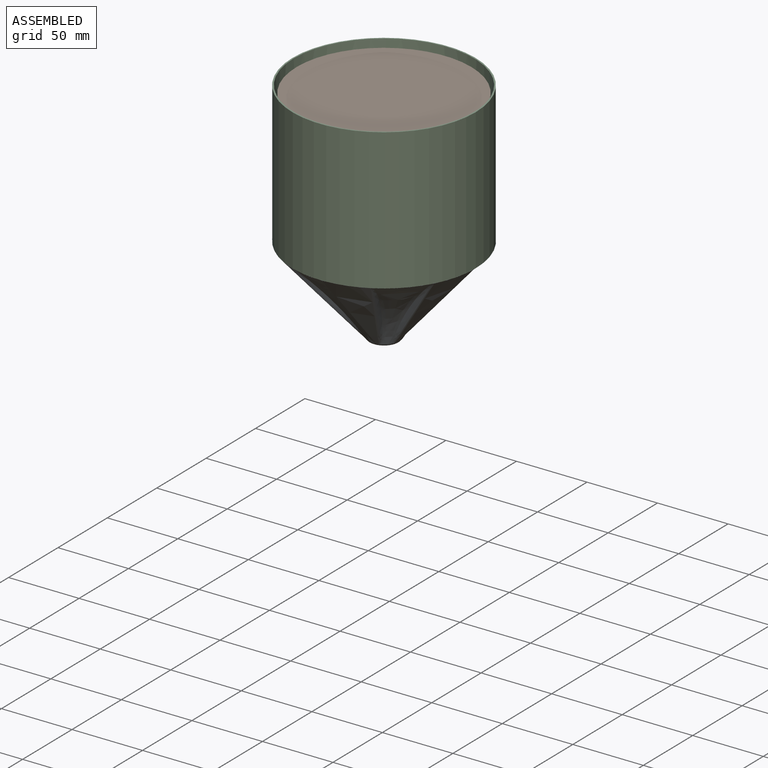
[diagram: assembled view]
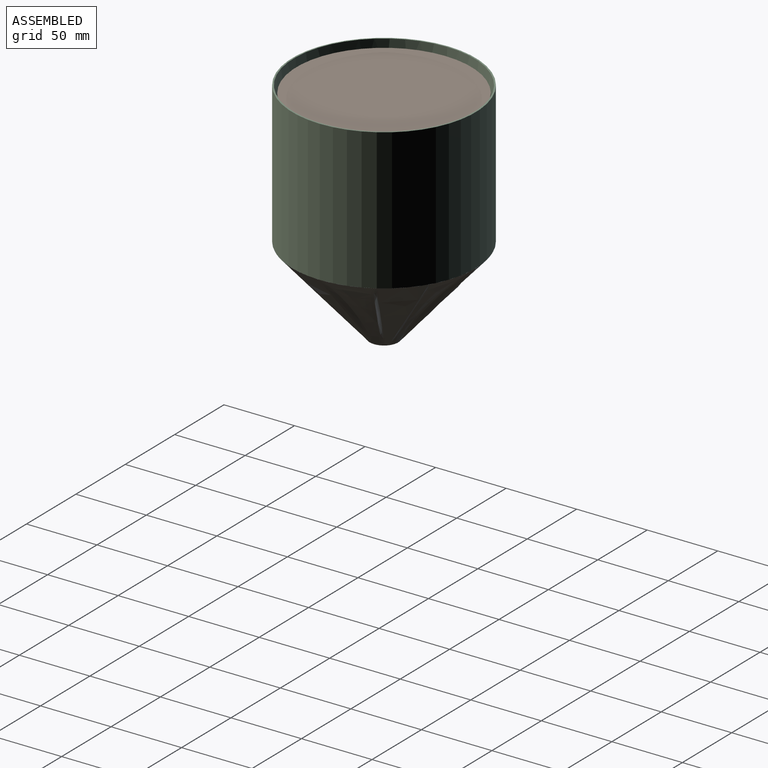
[diagram: assembled view, second angle]
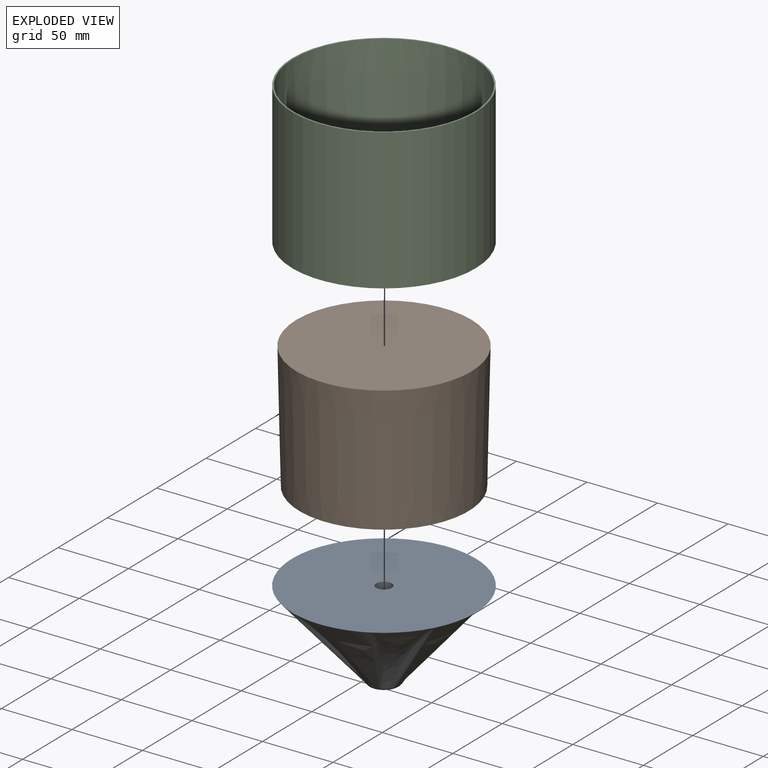
[diagram: exploded view]
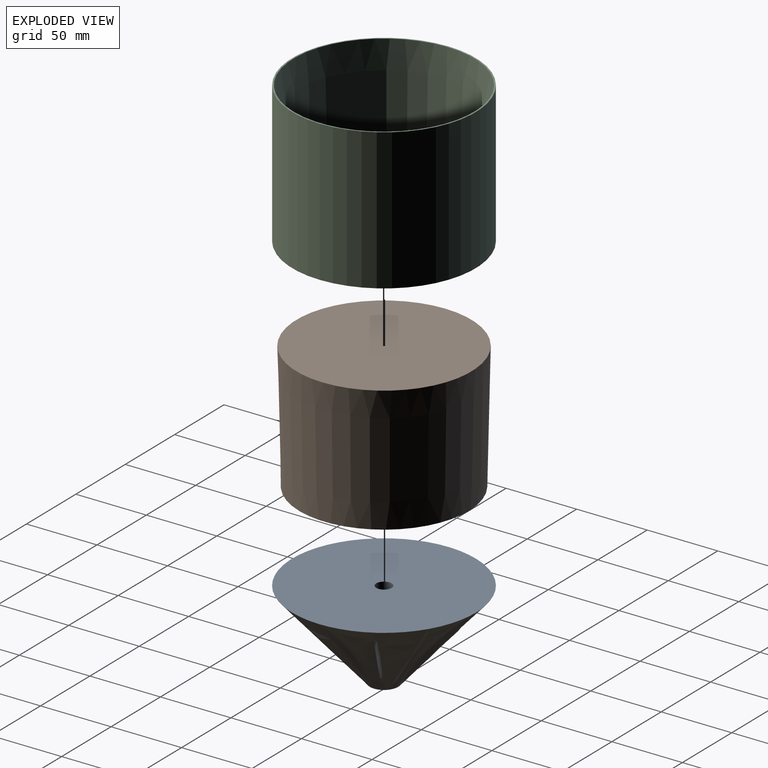
[diagram: exploded view, second angle]
ASSEMBLY  parts=3 mates=2
PART A: 54 faces, bbox 162.1x162.1x113 mm
  f0: plane 130.86x130.86mm, normal (0,0,1), area 13178.4mm2, adj f1,f4,f5,f6,f7,f8,f9,f10
  f1: cone r=65mm half-angle=41.4deg, axis (0,0,1), area 7767.7mm2, adj f0,f11,f12,f13,f14,f15,f16,f17
  f2: cylinder r=8.5mm len=17mm, axis (0,0,-1), area 446.3mm2, adj f3,f53
  f3: plane 17x17mm, normal (0,0,-1), area 131.9mm2, adj f2,f4
  f4: cylinder r=5.5mm len=53mm, axis (0,0,-1), area 1831.5mm2, adj f0,f3
  f5: torus R=207.88mm, axis (0,0,-1), area 1139.4mm2, adj f0,f16,f29,f31
  f6: torus R=207.88mm, axis (0,0,-1), area 1139.4mm2, adj f0,f15,f33,f35
  f7: torus R=207.88mm, axis (0,0,-1), area 1139.4mm2, adj f0,f14,f37,f39
  f8: torus R=207.88mm, axis (0,0,-1), area 1139.4mm2, adj f0,f13,f41,f43
  f9: torus R=207.88mm, axis (0,0,-1), area 1139.4mm2, adj f0,f12,f45,f47
  f10: torus R=207.88mm, axis (0,0,-1), area 1139.4mm2, adj f0,f11,f49,f51
  f11: torus R=9.26mm, axis (0,0,-1), area 4.2mm2, adj f1,f10,f50,f52
  f12: torus R=9.26mm, axis (0,0,-1), area 4.2mm2, adj f1,f9,f46,f48
  f13: torus R=9.26mm, axis (0,0,-1), area 4.2mm2, adj f1,f8,f42,f44
  f14: torus R=9.26mm, axis (0,0,-1), area 4.2mm2, adj f1,f7,f38,f40
  f15: torus R=9.26mm, axis (0,0,-1), area 4.2mm2, adj f1,f6,f34,f36
  f16: torus R=9.26mm, axis (0,0,-1), area 4.2mm2, adj f1,f5,f30,f32
  f17: bspline ~81.3x63.44mm, area 119.9mm2, adj f1,f51,f52
  f18: bspline ~81.3x63.44mm, area 119.9mm2, adj f1,f49,f50
  f19: bspline ~81.3x72.1mm, area 119.9mm2, adj f1,f47,f48
  f20: bspline ~81.3x62.44mm, area 119.9mm2, adj f1,f45,f46
  f21: bspline ~81.3x62.44mm, area 119.9mm2, adj f1,f43,f44
  f22: bspline ~81.3x72.1mm, area 119.9mm2, adj f1,f41,f42
  f23: bspline ~81.3x63.44mm, area 119.9mm2, adj f1,f39,f40
  f24: bspline ~81.3x63.44mm, area 119.9mm2, adj f1,f37,f38
  f25: bspline ~81.3x62.44mm, area 119.9mm2, adj f1,f35,f36
  f26: bspline ~81.3x72.1mm, area 119.9mm2, adj f1,f33,f34
  f27: bspline ~81.3x72.1mm, area 119.9mm2, adj f1,f31,f32
  f28: bspline ~81.3x62.44mm, area 119.9mm2, adj f1,f29,f30
  f29: bspline ~61.16x46.74mm, area 317.2mm2, adj f1,f5,f28,f30
  f30: bspline ~2.28x2.16mm, area 0.5mm2, adj f16,f28,f29
  f31: bspline ~61.08x54.07mm, area 318.1mm2, adj f0,f1,f5,f27,f32
  f32: bspline ~2.57x2.28mm, area 0.5mm2, adj f16,f27,f31
  f33: bspline ~61.16x54.13mm, area 317.2mm2, adj f1,f6,f26,f34
  f34: bspline ~2.57x2.28mm, area 0.5mm2, adj f15,f26,f33
  f35: bspline ~61.08x46.65mm, area 318.1mm2, adj f0,f1,f6,f25,f36
  f36: bspline ~2.28x2.16mm, area 0.5mm2, adj f15,f25,f35
  f37: bspline ~61.1x47.33mm, area 317.2mm2, adj f1,f7,f24,f38
  f38: bspline ~2.59x2.28mm, area 0.5mm2, adj f14,f24,f37
  f39: bspline ~61.08x47.44mm, area 318.1mm2, adj f0,f1,f7,f23,f40
  f40: bspline ~2.59x2.28mm, area 0.5mm2, adj f14,f23,f39
  f41: bspline ~60.96x53.98mm, area 317.2mm2, adj f1,f8,f22,f42
  f42: bspline ~2.57x2.28mm, area 0.5mm2, adj f13,f22,f41
  f43: bspline ~61.08x46.65mm, area 318.1mm2, adj f0,f1,f8,f21,f44
  f44: bspline ~2.28x2.16mm, area 0.5mm2, adj f13,f21,f43
  f45: bspline ~60.96x46.51mm, area 317.2mm2, adj f1,f9,f20,f46
  f46: bspline ~2.28x2.16mm, area 0.5mm2, adj f12,f20,f45
  f47: bspline ~61.08x54.07mm, area 318.1mm2, adj f0,f1,f9,f19,f48
  f48: bspline ~2.57x2.28mm, area 0.5mm2, adj f12,f19,f47
  f49: bspline ~61.1x47.33mm, area 317.2mm2, adj f1,f10,f18,f50
  f50: bspline ~2.59x2.28mm, area 0.5mm2, adj f11,f18,f49
  f51: bspline ~61.08x47.44mm, area 318.1mm2, adj f0,f1,f10,f17,f52
  f52: bspline ~2.59x2.28mm, area 0.5mm2, adj f11,f17,f51
  f53: torus R=9.5mm, axis (0,0,1), area 140.2mm2, adj f1,f2
PART B: 14 faces, bbox 124x124x90 mm
  f0: plane 13x13mm, normal (0,0,-1), area 132.7mm2, adj f10
  f1: plane 124x124mm, normal (0,0,1), area 12076.3mm2, adj f2
  f2: cone r=60mm half-angle=1.3deg, axis (0,0,1), area 34503.2mm2, adj f1,f3
  f3: plane 120x120mm, normal (0,0,-1), area 4948mm2, adj f2,f11
  f4: cylinder r=40mm len=80mm, axis (0,0,-1), area 10053.1mm2, adj f11,f12
  f5: plane 70x70mm, normal (0,0,-1), area 1472.6mm2, adj f12,f13
  f6: cylinder r=22.5mm len=45mm, axis (0,0,-1), area 6361.7mm2, adj f7,f13
  f7: plane 45x45mm, normal (0,0,-1), area 1437.6mm2, adj f6,f8
  f8: cylinder r=6.98mm len=13.95mm, axis (0,0,-1), area 32.9mm2, adj f7,f9
  f9: cone r=6.5mm half-angle=45deg, axis (0,0,-1), area 28.4mm2, adj f8,f10
  f10: cylinder r=6.5mm len=17.08mm, axis (0,0,-1), area 697.4mm2, adj f0,f9
  f11: torus R=45mm, axis (0,0,1), area 2063.6mm2, adj f3,f4
  f12: torus R=35mm, axis (0,0,1), area 1884.3mm2, adj f4,f5
  f13: torus R=27.5mm, axis (0,0,1), area 1200mm2, adj f5,f6
PART C: 4 faces, bbox 130x130x100 mm
  f0: cone r=60mm half-angle=2.3deg, axis (0,0,1), area 38986.9mm2, adj f1,f3
  f1: plane 130x130mm, normal (0,0,-1), area 1963.5mm2, adj f0,f2
  f2: cylinder r=65mm len=130mm, axis (0,0,-1), area 40840.7mm2, adj f1,f3
  f3: plane 130x130mm, normal (0,0,1), area 405.3mm2, adj f0,f2
PLACE A t=(-133.75,-0.1,-18.97)mm
PLACE B t=(-133.75,-0.1,-18.97)mm
PLACE C t=(-133.75,-0.1,-18.97)mm
MATE slider B.f2 <-> C.f0  axis (0,0,1) through (-133.75,-0.1,26.03)mm
MATE planar C.f0 <-> A.f5  axis (0,0,-1) through (-133.75,-0.1,-23.97)mm
